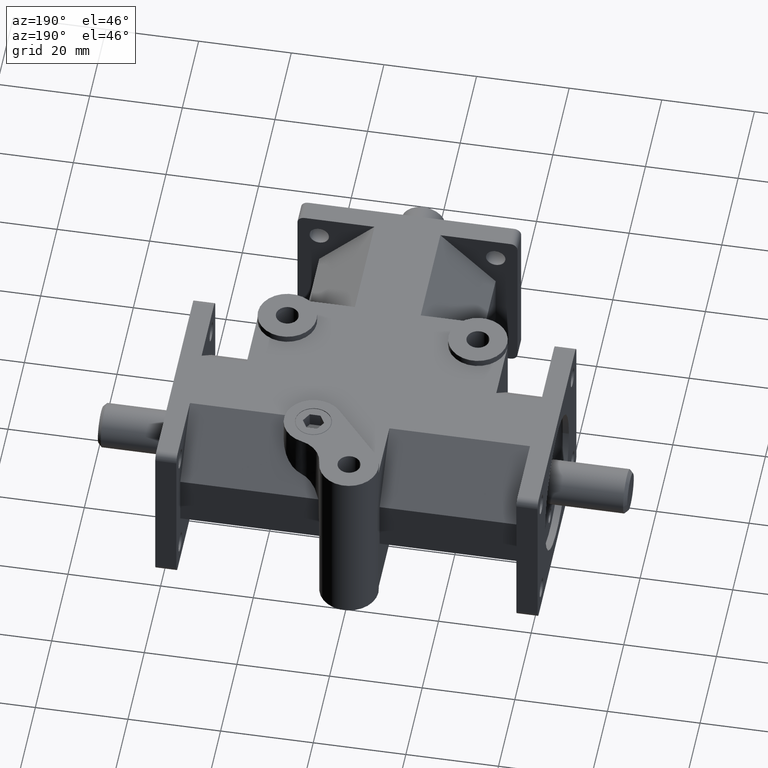
[diagram: clean part render]
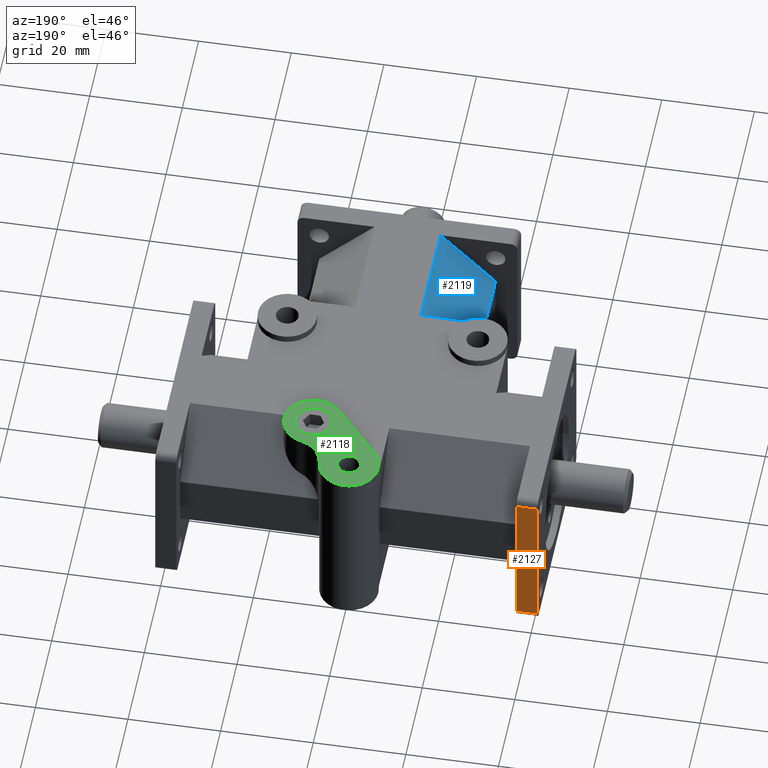
[diagram: same view with three faces highlighted in distinct colors, each labeled with its STEP entity id]
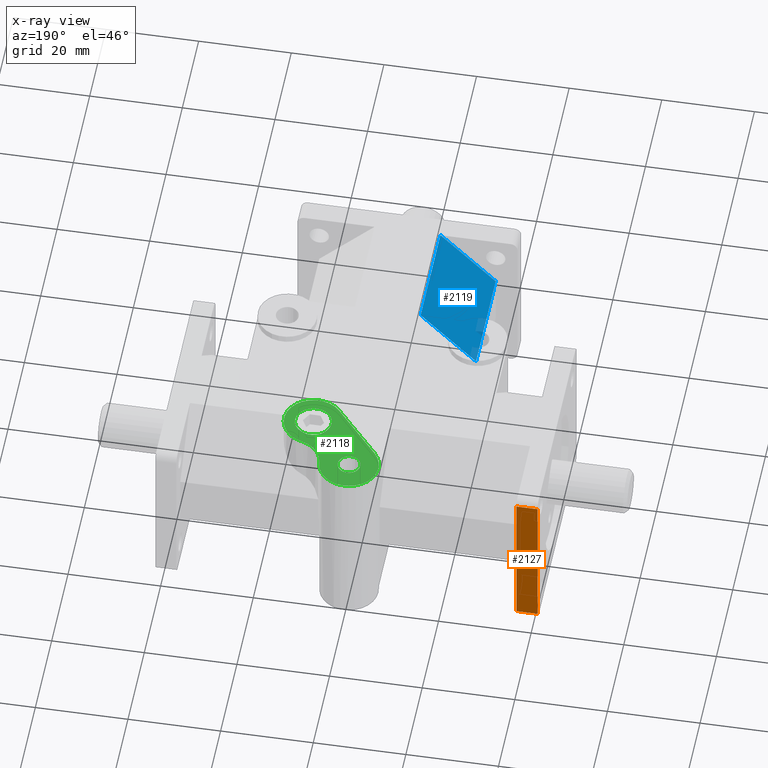
[diagram: x-ray of the same camera — body ghosted, the three highlighted faces saturated]
A machine part, auxiliary view with three faces highlighted in distinct colors.
The next image is the same camera in x-ray (body ghosted, the three faces saturated) — at least one of them is partly hidden behind the body in this view.
Their STEP definitions:

[orange] entity #2127 — the highlighted planar face has unit normal (0, 1, 0).
#96=PLANE('',#2336);
#189=FACE_OUTER_BOUND('',#332,.T.);
#332=EDGE_LOOP('',(#1719,#1720,#1721,#1722));
#549=LINE('',#3233,#744);
#552=LINE('',#3245,#747);
#658=LINE('',#3511,#853);
#661=LINE('',#3519,#856);
#744=VECTOR('',#2589,1.);
#747=VECTOR('',#2600,1.);
#853=VECTOR('',#2828,1.);
#856=VECTOR('',#2837,1.);
#967=VERTEX_POINT('',#3230);
#968=VERTEX_POINT('',#3232);
#970=VERTEX_POINT('',#3238);
#973=VERTEX_POINT('',#3243);
#1178=EDGE_CURVE('',#967,#968,#549,.T.);
#1184=EDGE_CURVE('',#973,#970,#552,.T.);
#1323=EDGE_CURVE('',#968,#973,#658,.T.);
#1328=EDGE_CURVE('',#967,#970,#661,.T.);
#1719=ORIENTED_EDGE('',*,*,#1178,.F.);
#1720=ORIENTED_EDGE('',*,*,#1328,.T.);
#1721=ORIENTED_EDGE('',*,*,#1184,.F.);
#1722=ORIENTED_EDGE('',*,*,#1323,.F.);
#2127=ADVANCED_FACE('',(#189),#96,.T.);
#2336=AXIS2_PLACEMENT_3D('',#3518,#2835,#2836);
#2589=DIRECTION('',(1.,0.,0.));
#2600=DIRECTION('',(-1.,0.,0.));
#2828=DIRECTION('',(0.,0.,1.));
#2835=DIRECTION('center_axis',(0.,1.,0.));
#2836=DIRECTION('ref_axis',(0.,0.,-1.));
#2837=DIRECTION('',(0.,0.,1.));
#3230=CARTESIAN_POINT('',(-1.625,3.1225,-0.63));
#3232=CARTESIAN_POINT('',(-1.445,3.1225,-0.63));
#3233=CARTESIAN_POINT('',(-0.8125,3.1225,-0.63));
#3238=CARTESIAN_POINT('',(-1.625,3.1225,0.63));
#3243=CARTESIAN_POINT('',(-1.445,3.1225,0.63));
#3245=CARTESIAN_POINT('',(-0.8125,3.1225,0.63));
#3511=CARTESIAN_POINT('',(-1.445,3.1225,0.));
#3518=CARTESIAN_POINT('Origin',(-1.625,3.1225,0.));
#3519=CARTESIAN_POINT('',(-1.625,3.1225,0.));

[blue] entity #2119 — the highlighted planar face has unit normal (-0.7071, 0, 0.7071).
#88=PLANE('',#2326);
#181=FACE_OUTER_BOUND('',#322,.T.);
#322=EDGE_LOOP('',(#1681,#1682,#1683,#1684));
#593=LINE('',#3364,#788);
#638=LINE('',#3473,#833);
#639=LINE('',#3475,#834);
#640=LINE('',#3476,#835);
#788=VECTOR('',#2699,1.);
#833=VECTOR('',#2794,1.);
#834=VECTOR('',#2795,1.);
#835=VECTOR('',#2796,1.);
#1021=VERTEX_POINT('',#3361);
#1022=VERTEX_POINT('',#3363);
#1061=VERTEX_POINT('',#3472);
#1062=VERTEX_POINT('',#3474);
#1246=EDGE_CURVE('',#1022,#1021,#593,.T.);
#1303=EDGE_CURVE('',#1061,#1022,#638,.F.);
#1304=EDGE_CURVE('',#1021,#1062,#639,.F.);
#1305=EDGE_CURVE('',#1062,#1061,#640,.T.);
#1681=ORIENTED_EDGE('',*,*,#1303,.T.);
#1682=ORIENTED_EDGE('',*,*,#1246,.T.);
#1683=ORIENTED_EDGE('',*,*,#1304,.T.);
#1684=ORIENTED_EDGE('',*,*,#1305,.T.);
#2119=ADVANCED_FACE('',(#181),#88,.T.);
#2326=AXIS2_PLACEMENT_3D('',#3471,#2792,#2793);
#2699=DIRECTION('',(0.,1.,0.));
#2792=DIRECTION('center_axis',(-0.707106781186548,0.,0.707106781186548));
#2793=DIRECTION('ref_axis',(-0.707106781186548,0.,-0.707106781186548));
#2794=DIRECTION('',(-0.707106781186548,0.,-0.707106781186548));
#2795=DIRECTION('',(0.707106781186548,0.,0.707106781186548));
#2796=DIRECTION('',(0.,-1.,0.));
#3361=CARTESIAN_POINT('',(-0.28,1.1275,0.69));
#3363=CARTESIAN_POINT('',(-0.28,0.18,0.69));
#3364=CARTESIAN_POINT('',(-0.28,0.930615091183138,0.69));
#3471=CARTESIAN_POINT('Origin',(-0.515,0.930615091183138,0.455));
#3472=CARTESIAN_POINT('',(-0.75,0.18,0.22));
#3473=CARTESIAN_POINT('',(-0.73375,0.18,0.23625));
#3474=CARTESIAN_POINT('',(-0.75,1.1275,0.22));
#3475=CARTESIAN_POINT('',(-0.6875,1.1275,0.2825));
#3476=CARTESIAN_POINT('',(-0.75,0.930615091183138,0.22));

[green] entity #2118 — the highlighted planar face has unit normal (0, 0, 1).
#41=FACE_BOUND('',#320,.T.);
#42=FACE_BOUND('',#321,.T.);
#87=PLANE('',#2321);
#180=FACE_OUTER_BOUND('',#319,.T.);
#319=EDGE_LOOP('',(#1674,#1675,#1676,#1677,#1678));
#320=EDGE_LOOP('',(#1679));
#321=EDGE_LOOP('',(#1680));
#416=CIRCLE('',#2206,0.25);
#485=CIRCLE('',#2313,0.155);
#486=CIRCLE('',#2322,0.25);
#487=CIRCLE('',#2323,0.25);
#488=CIRCLE('',#2324,0.25);
#489=CIRCLE('',#2325,0.0965);
#637=LINE('',#3465,#832);
#832=VECTOR('',#2785,1.);
#913=VERTEX_POINT('',#3088);
#915=VERTEX_POINT('',#3091);
#1044=VERTEX_POINT('',#3421);
#1057=VERTEX_POINT('',#3462);
#1058=VERTEX_POINT('',#3464);
#1059=VERTEX_POINT('',#3466);
#1060=VERTEX_POINT('',#3469);
#1115=EDGE_CURVE('',#913,#915,#416,.T.);
#1278=EDGE_CURVE('',#1044,#1044,#485,.T.);
#1298=EDGE_CURVE('',#1057,#913,#486,.T.);
#1299=EDGE_CURVE('',#1058,#1057,#637,.T.);
#1300=EDGE_CURVE('',#1059,#1058,#487,.T.);
#1301=EDGE_CURVE('',#915,#1059,#488,.T.);
#1302=EDGE_CURVE('',#1060,#1060,#489,.T.);
#1674=ORIENTED_EDGE('',*,*,#1298,.F.);
#1675=ORIENTED_EDGE('',*,*,#1299,.F.);
#1676=ORIENTED_EDGE('',*,*,#1300,.F.);
#1677=ORIENTED_EDGE('',*,*,#1301,.F.);
#1678=ORIENTED_EDGE('',*,*,#1115,.F.);
#1679=ORIENTED_EDGE('',*,*,#1302,.T.);
#1680=ORIENTED_EDGE('',*,*,#1278,.T.);
#2118=ADVANCED_FACE('',(#180,#41,#42),#87,.T.);
#2206=AXIS2_PLACEMENT_3D('',#3092,#2438,#2439);
#2313=AXIS2_PLACEMENT_3D('',#3422,#2746,#2747);
#2321=AXIS2_PLACEMENT_3D('',#3461,#2781,#2782);
#2322=AXIS2_PLACEMENT_3D('',#3463,#2783,#2784);
#2323=AXIS2_PLACEMENT_3D('',#3467,#2786,#2787);
#2324=AXIS2_PLACEMENT_3D('',#3468,#2788,#2789);
#2325=AXIS2_PLACEMENT_3D('',#3470,#2790,#2791);
#2438=DIRECTION('center_axis',(0.,0.,-1.));
#2439=DIRECTION('ref_axis',(1.,0.,0.));
#2746=DIRECTION('center_axis',(0.,0.,-1.));
#2747=DIRECTION('ref_axis',(-1.,0.,0.));
#2781=DIRECTION('center_axis',(0.,0.,1.));
#2782=DIRECTION('ref_axis',(-1.,0.,0.));
#2783=DIRECTION('center_axis',(0.,0.,-1.));
#2784=DIRECTION('ref_axis',(1.,0.,0.));
#2785=DIRECTION('',(-0.653619870346092,0.75682300776916,0.));
#2786=DIRECTION('center_axis',(0.,0.,-1.));
#2787=DIRECTION('ref_axis',(1.,0.,0.));
#2788=DIRECTION('center_axis',(0.,0.,1.));
#2789=DIRECTION('ref_axis',(1.,0.,0.));
#2790=DIRECTION('center_axis',(0.,0.,-1.));
#2791=DIRECTION('ref_axis',(1.,0.,0.));
#3088=CARTESIAN_POINT('',(-0.25,2.9975,0.75));
#3091=CARTESIAN_POINT('',(0.248944199527125,3.02045180868252,0.75));
#3092=CARTESIAN_POINT('Origin',(0.,2.9975,0.75));
#3421=CARTESIAN_POINT('',(0.535,2.5575,0.75));
#3422=CARTESIAN_POINT('Origin',(0.38,2.5575,0.75));
#3461=CARTESIAN_POINT('Origin',(0.0227272727272727,2.9975,0.75));
#3462=CARTESIAN_POINT('',(-0.18920575194229,2.83409503241348,0.75));
#3463=CARTESIAN_POINT('Origin',(0.,2.9975,0.75));
#3464=CARTESIAN_POINT('',(0.19079424805771,2.39409503241348,0.75));
#3465=CARTESIAN_POINT('',(0.19079424805771,2.39409503241348,0.75));
#3466=CARTESIAN_POINT('',(0.438944199527127,2.80045180868252,0.75));
#3467=CARTESIAN_POINT('Origin',(0.38,2.5575,0.75));
#3468=CARTESIAN_POINT('Origin',(0.49788839905425,3.04340361736503,0.75));
#3469=CARTESIAN_POINT('',(-0.0965,2.9975,0.75));
#3470=CARTESIAN_POINT('Origin',(0.,2.9975,0.75));